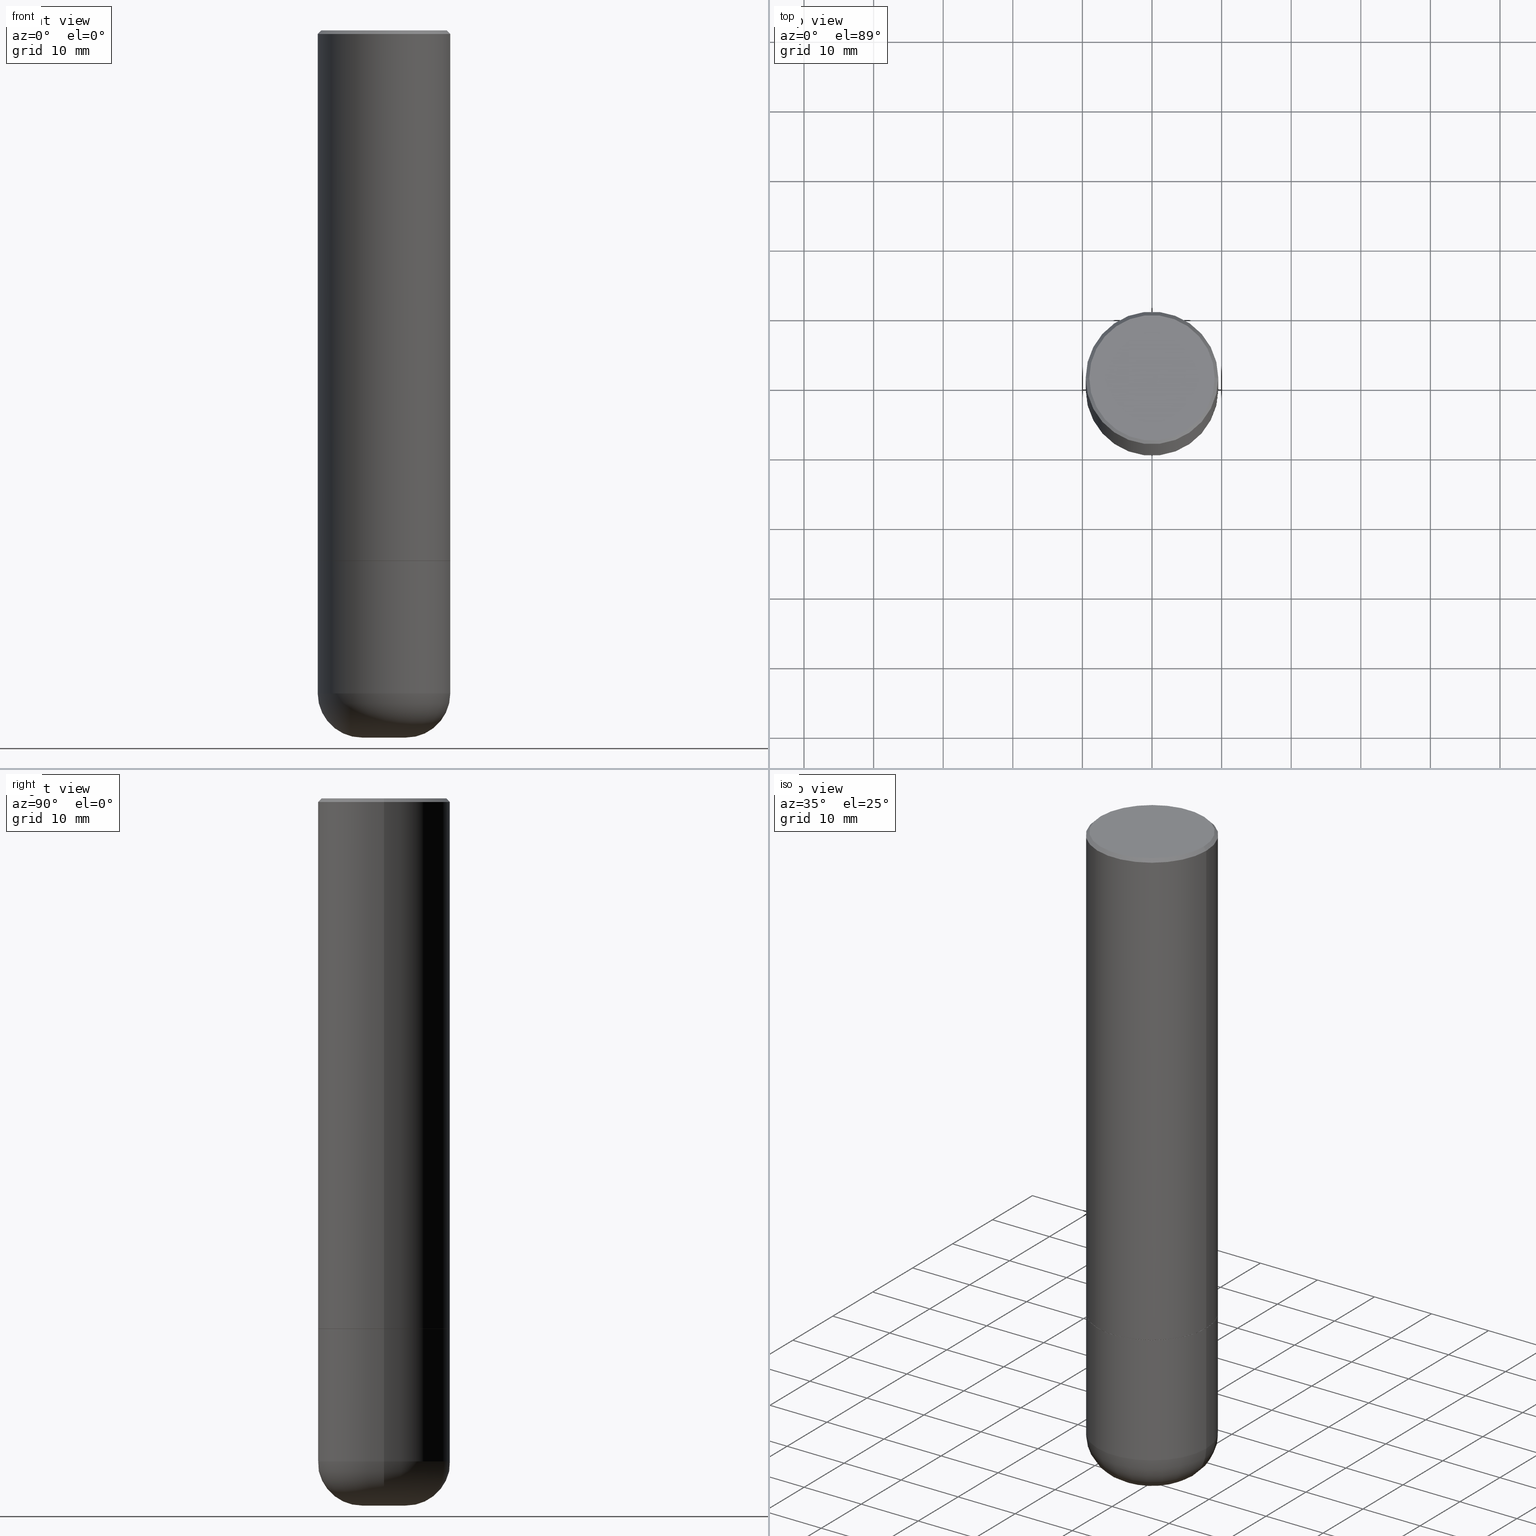
[diagram: canonical four-view strip — front | top / right | iso, engineering-drawing reading convention]
A machine part, canonical four-view strip (front | top / right | iso — engineering-drawing reading convention). The complete STEP part file that produces these views, byte-faithful:
ISO-10303-21;
HEADER;
FILE_DESCRIPTION (( 'STEP AP203' ),
    '1' );
FILE_NAME ('35722.STEP',
    '2022-11-02T20:52:24',
    ( '' ),
    ( '' ),
    'SwSTEP 2.0',
    'SolidWorks 2022',
    '' );
FILE_SCHEMA (( 'CONFIG_CONTROL_DESIGN' ));
ENDSEC;

DATA;
#1 = DIRECTION ( 'NONE',  ( -2.445468806185136597E-29, 3.491481338843145583E-15, 1.000000000000000000 ) ) ;
#2 = DIRECTION ( 'NONE',  ( -2.438088387897960049E-29, 3.491481338843145188E-15, 1.000000000000000000 ) ) ;
#3 = VECTOR ( 'NONE', #160, 39.37007874015748143 ) ;
#4 = ADVANCED_FACE ( 'NONE', ( #309 ), #453, .T. ) ;
#5 = VECTOR ( 'NONE', #356, 39.37007874015748143 ) ;
#6 = CARTESIAN_POINT ( 'NONE',  ( -0.3749999999999995004, -9.119230877609102536E-15, -2.999999999999999556 ) ) ;
#7 = APPLICATION_PROTOCOL_DEFINITION ( 'international standard', 'config_control_design', 1994, #52 ) ;
#8 = EDGE_LOOP ( 'NONE', ( #435, #21, #101, #158 ) ) ;
#9 = DIRECTION ( 'NONE',  ( -1.000000000000000000, 6.982962677686265922E-15, -4.876176775795935793E-29 ) ) ;
#10 = CALENDAR_DATE ( 2022, 2, 11 ) ;
#11 = DIRECTION ( 'NONE',  ( -2.445468806185136597E-29, 3.491481338843145583E-15, 1.000000000000000000 ) ) ;
#12 = CIRCLE ( 'NONE', #297, 0.3549999999999989275 ) ;
#13 = DIRECTION ( 'NONE',  ( 7.105427357601001859E-15, 1.000000000000000000, -3.491481338843145583E-15 ) ) ;
#14 = AXIS2_PLACEMENT_3D ( 'NONE', #204, #175, #325 ) ;
#15 = COORDINATED_UNIVERSAL_TIME_OFFSET ( 5, 0, .BEHIND. ) ;
#16 = LINE ( 'NONE', #38, #180 ) ;
#17 = CARTESIAN_POINT ( 'NONE',  ( 4.890937612370327459E-31, -6.982962677686369262E-17, -0.02000000000000022246 ) ) ;
#18 = FACE_OUTER_BOUND ( 'NONE', #253, .T. ) ;
#19 = CIRCLE ( 'NONE', #324, 0.3749999999999995004 ) ;
#20 = ORIENTED_EDGE ( 'NONE', *, *, #93, .T. ) ;
#21 = ORIENTED_EDGE ( 'NONE', *, *, #362, .T. ) ;
#22 = VERTEX_POINT ( 'NONE', #6 ) ;
#23 = AXIS2_PLACEMENT_3D ( 'NONE', #284, #13, #233 ) ;
#24 = LOCAL_TIME ( 16, 52, 24.00000000000000000, #353 ) ;
#25 = DIRECTION ( 'NONE',  ( -2.445468806185136597E-29, 3.491481338843145583E-15, 1.000000000000000000 ) ) ;
#26 = ORIENTED_EDGE ( 'NONE', *, *, #149, .F. ) ;
#27 = DIRECTION ( 'NONE',  ( -1.000000000000000000, 6.982962677686266711E-15, 0.000000000000000000 ) ) ;
#28 = CARTESIAN_POINT ( 'NONE',  ( 0.000000000000000000, 0.000000000000000000, 0.000000000000000000 ) ) ;
#29 = TOROIDAL_SURFACE ( 'NONE', #361, 0.1250000000000002498, 0.2499999999999998890 ) ;
#30 = DIRECTION ( 'NONE',  ( -0.9993908270190957621, 6.856857904024565937E-15, -0.03489949670249840874 ) ) ;
#31 = APPLICATION_CONTEXT ( 'configuration controlled 3d designs of mechanical parts and assemblies' ) ;
#32 = EDGE_CURVE ( 'NONE', #407, #88, #280, .T. ) ;
#33 = DIRECTION ( 'NONE',  ( 2.445468806185136597E-29, -3.491481338843145583E-15, -1.000000000000000000 ) ) ;
#34 = ADVANCED_FACE ( 'NONE', ( #263 ), #121, .F. ) ;
#35 = LINE ( 'NONE', #490, #360 ) ;
#36 = COORDINATED_UNIVERSAL_TIME_OFFSET ( 5, 0, .BEHIND. ) ;
#37 = EDGE_CURVE ( 'NONE', #443, #399, #380, .T. ) ;
#38 = CARTESIAN_POINT ( 'NONE',  ( -0.1228183661254081405, -1.310828928858444983E-14, -4.000000000000000000 ) ) ;
#39 = AXIS2_PLACEMENT_3D ( 'NONE', #485, #145, #340 ) ;
#40 = CARTESIAN_POINT ( 'NONE',  ( 0.3749999999999997780, -2.618611004132348044E-15, 1.828566290923474801E-29 ) ) ;
#41 = DATE_TIME_ROLE ( 'classification_date' ) ;
#42 = CARTESIAN_POINT ( 'NONE',  ( 0.3749999999999995004, -1.309305502066178164E-14, -2.999999999999999556 ) ) ;
#43 = APPROVAL ( #460, 'UNSPECIFIED' ) ;
#44 = CARTESIAN_POINT ( 'NONE',  ( 0.3749999999999992784, -2.618611004132345283E-15, 1.828566290923472279E-29 ) ) ;
#45 = CARTESIAN_POINT ( 'NONE',  ( -0.3749999999999992784, 2.664535259100370569E-15, -1.844600658845586235E-29 ) ) ;
#46 = PERSON_AND_ORGANIZATION_ROLE ( 'creator' ) ;
#47 = CARTESIAN_POINT ( 'NONE',  ( 9.781021626775434250E-29, -1.396470664370530441E-14, -3.999650947105539256 ) ) ;
#48 = AXIS2_PLACEMENT_3D ( 'NONE', #296, #447, #113 ) ;
#49 = CARTESIAN_POINT ( 'NONE',  ( 7.336406418555408669E-29, -1.047444401652943478E-14, -2.999999999999999556 ) ) ;
#50 = CC_DESIGN_APPROVAL ( #393, ( #248 ) ) ;
#51 = EDGE_CURVE ( 'NONE', #139, #71, #431, .T. ) ;
#52 = APPLICATION_CONTEXT ( 'configuration controlled 3d designs of mechanical parts and assemblies' ) ;
#53 = ORIENTED_EDGE ( 'NONE', *, *, #66, .F. ) ;
#54 = FACE_OUTER_BOUND ( 'NONE', #429, .T. ) ;
#55 =( CONVERSION_BASED_UNIT ( 'INCH', #388 ) LENGTH_UNIT ( ) NAMED_UNIT ( #251 ) );
#56 = DIRECTION ( 'NONE',  ( 1.000000000000000000, -6.982962677686265922E-15, 4.876176775795935793E-29 ) ) ;
#57 = ADVANCED_FACE ( 'NONE', ( #197 ), #157, .F. ) ;
#58 = CIRCLE ( 'NONE', #67, 0.1228183661254081405 ) ;
#59 = LOCAL_TIME ( 16, 52, 24.00000000000000000, #36 ) ;
#60 = CIRCLE ( 'NONE', #14, 0.2499999999999998612 ) ;
#61 = AXIS2_PLACEMENT_3D ( 'NONE', #28, #268, #411 ) ;
#62 = PRODUCT ( '35722', '35722', '', ( #444 ) ) ;
#63 = ORIENTED_EDGE ( 'NONE', *, *, #303, .F. ) ;
#64 = APPLICATION_PROTOCOL_DEFINITION ( 'international standard', 'config_control_design', 1994, #31 ) ;
#65 = EDGE_LOOP ( 'NONE', ( #402, #109, #390, #478 ) ) ;
#66 = EDGE_CURVE ( 'NONE', #71, #443, #439, .T. ) ;
#67 = AXIS2_PLACEMENT_3D ( 'NONE', #72, #406, #455 ) ;
#68 = PRODUCT_DEFINITION_SHAPE ( 'NONE', 'NONE',  #482 ) ;
#69 = PERSON_AND_ORGANIZATION_ROLE ( 'design_owner' ) ;
#70 = DIRECTION ( 'NONE',  ( -0.7071067811865469066, 2.468850131082251144E-15, -0.7071067811865479058 ) ) ;
#71 = VERTEX_POINT ( 'NONE', #90 ) ;
#72 = CARTESIAN_POINT ( 'NONE',  ( 9.781875224740546387E-29, -1.396592535537258233E-14, -4.000000000000000000 ) ) ;
#73 = ORIENTED_EDGE ( 'NONE', *, *, #442, .T. ) ;
#74 = AXIS2_PLACEMENT_3D ( 'NONE', #469, #96, #200 ) ;
#75 = CIRCLE ( 'NONE', #422, 0.3749999999999995004 ) ;
#76 = DIRECTION ( 'NONE',  ( -2.445468806185136597E-29, 3.491481338843145583E-15, 1.000000000000000000 ) ) ;
#77 = ORIENTED_EDGE ( 'NONE', *, *, #94, .T. ) ;
#78 = DIRECTION ( 'NONE',  ( -2.445468806185136597E-29, 3.491481338843145583E-15, 1.000000000000000000 ) ) ;
#79 = ORIENTED_EDGE ( 'NONE', *, *, #398, .F. ) ;
#80 = VERTEX_POINT ( 'NONE', #238 ) ;
#81 = DIRECTION ( 'NONE',  ( 0.7071067811868130271, -2.468850131085038979E-15, 0.7071067811862817853 ) ) ;
#82 = DIRECTION ( 'NONE',  ( 2.438088387897960049E-29, -3.491481338843145188E-15, -1.000000000000000000 ) ) ;
#83 = UNCERTAINTY_MEASURE_WITH_UNIT (LENGTH_MEASURE( 1.000000000000000082E-05 ), #55, 'distance_accuracy_value', 'NONE');
#84 = CALENDAR_DATE ( 2022, 2, 11 ) ;
#85 = FACE_OUTER_BOUND ( 'NONE', #214, .T. ) ;
#86 = VECTOR ( 'NONE', #30, 39.37007874015748854 ) ;
#87 = PERSON_AND_ORGANIZATION ( #476, #338 ) ;
#88 = VERTEX_POINT ( 'NONE', #205 ) ;
#89 = LINE ( 'NONE', #44, #5 ) ;
#90 = CARTESIAN_POINT ( 'NONE',  ( -0.3750000000000000555, -9.119230877609100958E-15, -3.750009519233957089 ) ) ;
#91 = PERSON_AND_ORGANIZATION ( #476, #338 ) ;
#92 = DIRECTION ( 'NONE',  ( -2.445468806185136597E-29, 3.491481338843145583E-15, 1.000000000000000000 ) ) ;
#93 = EDGE_CURVE ( 'NONE', #259, #414, #474, .T. ) ;
#94 = EDGE_CURVE ( 'NONE', #271, #407, #472, .T. ) ;
#95 = EDGE_LOOP ( 'NONE', ( #266, #394, #147, #285 ) ) ;
#96 = DIRECTION ( 'NONE',  ( 2.445468806185136597E-29, -3.491481338843145583E-15, -1.000000000000000000 ) ) ;
#97 = CONICAL_SURFACE ( 'NONE', #371, 0.3739999999999994995, 0.7853981633978239785 ) ;
#98 = AXIS2_PLACEMENT_3D ( 'NONE', #419, #92, #132 ) ;
#99 = ADVANCED_FACE ( 'NONE', ( #122 ), #391, .F. ) ;
#100 = DIRECTION ( 'NONE',  ( -1.000000000000000000, 6.982962677686264344E-15, 0.000000000000000000 ) ) ;
#101 = ORIENTED_EDGE ( 'NONE', *, *, #322, .T. ) ;
#102 = CC_DESIGN_DATE_AND_TIME_ASSIGNMENT ( #230, #269, ( #482 ) ) ;
#103 = VECTOR ( 'NONE', #228, 39.37007874015748854 ) ;
#104 = EDGE_LOOP ( 'NONE', ( #347, #302, #143, #246 ) ) ;
#105 = EDGE_CURVE ( 'NONE', #443, #71, #206, .T. ) ;
#106 = EDGE_LOOP ( 'NONE', ( #181, #108 ) ) ;
#107 = ADVANCED_FACE ( 'NONE', ( #428 ), #97, .T. ) ;
#108 = ORIENTED_EDGE ( 'NONE', *, *, #264, .T. ) ;
#109 = ORIENTED_EDGE ( 'NONE', *, *, #167, .T. ) ;
#110 = CIRCLE ( 'NONE', #480, 0.3739999999999994995 ) ;
#111 = DIRECTION ( 'NONE',  ( -2.445468806185136597E-29, 3.491481338843145583E-15, 1.000000000000000000 ) ) ;
#112 = EDGE_CURVE ( 'NONE', #329, #292, #381, .T. ) ;
#113 = DIRECTION ( 'NONE',  ( 1.000000000000000000, -6.982962677686266711E-15, 0.000000000000000000 ) ) ;
#114 = CYLINDRICAL_SURFACE ( 'NONE', #396, 0.3749999999999997780 ) ;
#115 = EDGE_LOOP ( 'NONE', ( #327, #223, #73, #385 ) ) ;
#116 = AXIS2_PLACEMENT_3D ( 'NONE', #344, #2, #148 ) ;
#117 = CC_DESIGN_SECURITY_CLASSIFICATION ( #248, ( #256 ) ) ;
#118 = CARTESIAN_POINT ( 'NONE',  ( 0.000000000000000000, 0.000000000000000000, 0.000000000000000000 ) ) ;
#119 = APPROVAL_ROLE ( '' ) ;
#120 = CARTESIAN_POINT ( 'NONE',  ( 7.333960949749226429E-29, -1.047095253519059492E-14, -2.999000000000000554 ) ) ;
#121 = PLANE ( 'NONE',  #134 ) ;
#122 = FACE_OUTER_BOUND ( 'NONE', #332, .T. ) ;
#123 = PERSON_AND_ORGANIZATION_ROLE ( 'creator' ) ;
#124 = ADVANCED_FACE ( 'NONE', ( #166 ), #231, .T. ) ;
#125 = EDGE_LOOP ( 'NONE', ( #210, #20, #250 ) ) ;
#126 = CIRCLE ( 'NONE', #48, 0.3749999999999991673 ) ;
#127 = CARTESIAN_POINT ( 'NONE',  ( 0.3739999999999994995, -1.308607205798409720E-14, -2.999999999999999556 ) ) ;
#128 = DIRECTION ( 'NONE',  ( 2.445468806185136597E-29, -3.491481338843145583E-15, -1.000000000000000000 ) ) ;
#129 = SHAPE_DEFINITION_REPRESENTATION ( #68, #382 ) ;
#130 = EDGE_CURVE ( 'NONE', #271, #80, #409, .T. ) ;
#131 = DIRECTION ( 'NONE',  ( 1.000000000000000000, -6.982962677686265922E-15, 4.883557194083113462E-29 ) ) ;
#132 = DIRECTION ( 'NONE',  ( 1.000000000000000000, -6.982962677686265922E-15, 4.883557194083113462E-29 ) ) ;
#133 = LINE ( 'NONE', #127, #185 ) ;
#134 = AXIS2_PLACEMENT_3D ( 'NONE', #377, #82, #229 ) ;
#135 = DIRECTION ( 'NONE',  ( 2.438088387897960049E-29, -3.491481338843145188E-15, -1.000000000000000000 ) ) ;
#136 = CIRCLE ( 'NONE', #481, 0.1228183661254081405 ) ;
#137 = EDGE_CURVE ( 'NONE', #311, #345, #287, .T. ) ;
#138 = CYLINDRICAL_SURFACE ( 'NONE', #331, 0.3749999999999997780 ) ;
#139 = VERTEX_POINT ( 'NONE', #177 ) ;
#140 = ORIENTED_EDGE ( 'NONE', *, *, #417, .F. ) ;
#141 = ORIENTED_EDGE ( 'NONE', *, *, #146, .T. ) ;
#142 = ADVANCED_FACE ( 'NONE', ( #182 ), #456, .T. ) ;
#143 = ORIENTED_EDGE ( 'NONE', *, *, #146, .F. ) ;
#144 = DIRECTION ( 'NONE',  ( 1.000000000000000000, 0.000000000000000000, 0.000000000000000000 ) ) ;
#145 = DIRECTION ( 'NONE',  ( -2.445468806185136597E-29, 3.491481338843145583E-15, 1.000000000000000000 ) ) ;
#146 = EDGE_CURVE ( 'NONE', #80, #271, #19, .T. ) ;
#147 = ORIENTED_EDGE ( 'NONE', *, *, #417, .T. ) ;
#148 = DIRECTION ( 'NONE',  ( 1.000000000000000000, -6.982962677686265922E-15, 4.876176775795935793E-29 ) ) ;
#149 = EDGE_CURVE ( 'NONE', #71, #22, #215, .T. ) ;
#150 = ORIENTED_EDGE ( 'NONE', *, *, #159, .T. ) ;
#151 = TOROIDAL_SURFACE ( 'NONE', #98, 0.1250000000000002498, 0.2499999999999998890 ) ;
#152 = CARTESIAN_POINT ( 'NONE',  ( 0.000000000000000000, 0.000000000000000000, 0.000000000000000000 ) ) ;
#153 = ORIENTED_EDGE ( 'NONE', *, *, #264, .F. ) ;
#154 = EDGE_CURVE ( 'NONE', #345, #271, #257, .T. ) ;
#155 = CARTESIAN_POINT ( 'NONE',  ( -0.08282086612540803805, -1.338637162661792959E-14, -3.999650947105539256 ) ) ;
#156 = DIRECTION ( 'NONE',  ( -0.7071067811868130271, 7.493145998871311837E-15, 0.7071067811862817853 ) ) ;
#157 = CONICAL_SURFACE ( 'NONE', #176, 0.08282086612540803805, 1.535889741755012583 ) ;
#158 = ORIENTED_EDGE ( 'NONE', *, *, #222, .F. ) ;
#159 = EDGE_CURVE ( 'NONE', #290, #139, #58, .T. ) ;
#160 = DIRECTION ( 'NONE',  ( -2.445468806185136877E-29, 3.491481338843145188E-15, 1.000000000000000000 ) ) ;
#161 = DATE_AND_TIME ( #10, #397 ) ;
#162 = ORIENTED_EDGE ( 'NONE', *, *, #37, .F. ) ;
#163 = CARTESIAN_POINT ( 'NONE',  ( 0.3750000000000000555, -1.571169926102186855E-14, -3.750009519233957089 ) ) ;
#164 = PERSON_AND_ORGANIZATION ( #476, #338 ) ;
#165 = CARTESIAN_POINT ( 'NONE',  ( 0.3749999999999991673, -2.642516375941182112E-15, -0.02000000000000022246 ) ) ;
#166 = FACE_OUTER_BOUND ( 'NONE', #400, .T. ) ;
#167 = EDGE_CURVE ( 'NONE', #345, #311, #110, .T. ) ;
#168 = COORDINATED_UNIVERSAL_TIME_OFFSET ( 5, 0, .BEHIND. ) ;
#169 = DIRECTION ( 'NONE',  ( 0.9993908270190957621, -6.978169709227532810E-15, -0.03489949670249840874 ) ) ;
#170 = PERSON_AND_ORGANIZATION_ROLE ( 'design_supplier' ) ;
#171 = CARTESIAN_POINT ( 'NONE',  ( -0.3739999999999994995, -7.811715730438443207E-15, -2.999999999999999556 ) ) ;
#172 = CARTESIAN_POINT ( 'NONE',  ( 7.333960949749226429E-29, -1.047095253519059492E-14, -2.999000000000000554 ) ) ;
#173 = FACE_OUTER_BOUND ( 'NONE', #95, .T. ) ;
#174 = DIRECTION ( 'NONE',  ( -2.445468806185136597E-29, 3.491481338843145583E-15, 1.000000000000000000 ) ) ;
#175 = DIRECTION ( 'NONE',  ( -6.982962677686266711E-15, -1.000000000000000000, 3.491481338843145583E-15 ) ) ;
#176 = AXIS2_PLACEMENT_3D ( 'NONE', #203, #128, #433 ) ;
#177 = CARTESIAN_POINT ( 'NONE',  ( -0.1228183661254081405, -1.176090068723919562E-14, -4.000000000000000000 ) ) ;
#178 = ORIENTED_EDGE ( 'NONE', *, *, #364, .T. ) ;
#179 = ORIENTED_EDGE ( 'NONE', *, *, #137, .F. ) ;
#180 = VECTOR ( 'NONE', #192, 39.37007874015748854 ) ;
#181 = ORIENTED_EDGE ( 'NONE', *, *, #398, .T. ) ;
#182 = FACE_OUTER_BOUND ( 'NONE', #104, .T. ) ;
#183 = CARTESIAN_POINT ( 'NONE',  ( -0.3739999999999994995, -7.817014184786664031E-15, -2.999999999999999556 ) ) ;
#184 = CARTESIAN_POINT ( 'NONE',  ( -0.3749999999999997780, 2.664535259100374119E-15, -1.844600658845588477E-29 ) ) ;
#185 = VECTOR ( 'NONE', #81, 39.37007874015748854 ) ;
#186 = DIRECTION ( 'NONE',  ( -2.445468806185136597E-29, 3.491481338843145583E-15, 1.000000000000000000 ) ) ;
#187 = DIRECTION ( 'NONE',  ( -2.445468806185136597E-29, 3.491481338843145583E-15, 1.000000000000000000 ) ) ;
#188 = DATE_AND_TIME ( #314, #432 ) ;
#189 = PLANE ( 'NONE',  #116 ) ;
#190 = CALENDAR_DATE ( 2022, 2, 11 ) ;
#191 = AXIS2_PLACEMENT_3D ( 'NONE', #172, #320, #477 ) ;
#192 = DIRECTION ( 'NONE',  ( -0.9999619230641714207, 6.952228252019186602E-15, -0.008726535498369011531 ) ) ;
#193 = APPROVAL_STATUS ( 'not_yet_approved' ) ;
#194 = ORIENTED_EDGE ( 'NONE', *, *, #105, .F. ) ;
#195 = EDGE_CURVE ( 'NONE', #292, #329, #12, .T. ) ;
#196 = DIRECTION ( 'NONE',  ( 1.000000000000000000, -6.982962677686266711E-15, 4.876231632512002757E-29 ) ) ;
#197 = FACE_OUTER_BOUND ( 'NONE', #459, .T. ) ;
#198 = CC_DESIGN_PERSON_AND_ORGANIZATION_ASSIGNMENT ( #164, #123, ( #256 ) ) ;
#199 = VECTOR ( 'NONE', #156, 39.37007874015748854 ) ;
#200 = DIRECTION ( 'NONE',  ( -1.000000000000000000, 6.982962677686262766E-15, 0.000000000000000000 ) ) ;
#201 = CARTESIAN_POINT ( 'NONE',  ( -1.043851414335219820E-46, 1.490343170380447200E-32, 4.268512490100411279E-18 ) ) ;
#202 = CARTESIAN_POINT ( 'NONE',  ( 9.170531302183963183E-29, -1.309308825688951696E-14, -3.750009519233957089 ) ) ;
#203 = CARTESIAN_POINT ( 'NONE',  ( 9.781021626775434250E-29, -1.396470664370530441E-14, -3.999650947105539256 ) ) ;
#204 = CARTESIAN_POINT ( 'NONE',  ( 0.1250000000000002498, -1.396595859160030187E-14, -3.750009519233957089 ) ) ;
#205 = CARTESIAN_POINT ( 'NONE',  ( 0.3749999999999991673, -2.642516375941182112E-15, -0.02000000000000022246 ) ) ;
#206 = CIRCLE ( 'NONE', #220, 0.3750000000000000555 ) ;
#207 = EDGE_CURVE ( 'NONE', #259, #483, #408, .T. ) ;
#208 = CONICAL_SURFACE ( 'NONE', #488, 0.1228183661254081405, 1.562069680534929894 ) ;
#209 = CLOSED_SHELL ( 'NONE', ( #454, #366, #463, #326, #57, #34, #282, #436, #451 ) ) ;
#210 = ORIENTED_EDGE ( 'NONE', *, *, #207, .F. ) ;
#211 = ORIENTED_EDGE ( 'NONE', *, *, #491, .F. ) ;
#212 = CARTESIAN_POINT ( 'NONE',  ( 7.336406418555408669E-29, -1.047444401652943478E-14, -2.999999999999999556 ) ) ;
#213 = CIRCLE ( 'NONE', #346, 0.3749999999999995004 ) ;
#214 = EDGE_LOOP ( 'NONE', ( #178, #219, #471, #140 ) ) ;
#215 = LINE ( 'NONE', #184, #3 ) ;
#216 = CARTESIAN_POINT ( 'NONE',  ( 0.000000000000000000, 0.000000000000000000, 0.000000000000000000 ) ) ;
#217 = CARTESIAN_POINT ( 'NONE',  ( -0.3749999999999993894, -2.605855821883354597E-15, -2.999000000000000554 ) ) ;
#218 = CARTESIAN_POINT ( 'NONE',  ( -1.043851414335219820E-46, 1.490343170380447200E-32, 4.268512490100411279E-18 ) ) ;
#219 = ORIENTED_EDGE ( 'NONE', *, *, #278, .T. ) ;
#220 = AXIS2_PLACEMENT_3D ( 'NONE', #289, #273, #283 ) ;
#221 = CARTESIAN_POINT ( 'NONE',  ( 4.890937612370327459E-31, -6.982962677686369262E-17, -0.02000000000000022246 ) ) ;
#222 = EDGE_CURVE ( 'NONE', #292, #407, #35, .T. ) ;
#223 = ORIENTED_EDGE ( 'NONE', *, *, #130, .T. ) ;
#224 = APPROVAL_ROLE ( '' ) ;
#225 = CARTESIAN_POINT ( 'NONE',  ( -0.3549999999999989275, 2.513866563967048758E-15, 4.268512490082953109E-18 ) ) ;
#226 = DATE_AND_TIME ( #190, #467 ) ;
#227 = ADVANCED_FACE ( 'NONE', ( #374 ), #492, .T. ) ;
#228 = DIRECTION ( 'NONE',  ( 0.7071067811865469066, -7.319954787623252890E-15, -0.7071067811865479058 ) ) ;
#229 = DIRECTION ( 'NONE',  ( -1.000000000000000000, 6.982962677686265922E-15, -4.876176775795935793E-29 ) ) ;
#230 = DATE_AND_TIME ( #84, #24 ) ;
#231 = CONICAL_SURFACE ( 'NONE', #392, 0.3749999999999991673, 0.7853981633974476129 ) ;
#232 = CC_DESIGN_APPROVAL ( #43, ( #256 ) ) ;
#233 = DIRECTION ( 'NONE',  ( -1.000000000000000000, 7.105427357601000281E-15, 0.000000000000000000 ) ) ;
#234 = APPROVAL_ROLE ( '' ) ;
#235 = EDGE_LOOP ( 'NONE', ( #26, #363, #304, #153 ) ) ;
#236 = DIRECTION ( 'NONE',  ( -1.000000000000000000, 6.982962677686264344E-15, 0.000000000000000000 ) ) ;
#237 = ORIENTED_EDGE ( 'NONE', *, *, #222, .T. ) ;
#238 = CARTESIAN_POINT ( 'NONE',  ( 0.3749999999999995004, -1.308956353932294179E-14, -2.999000000000000554 ) ) ;
#239 = ORIENTED_EDGE ( 'NONE', *, *, #195, .T. ) ;
#240 = CIRCLE ( 'NONE', #247, 0.08282086612540803805 ) ;
#241 = DIRECTION ( 'NONE',  ( 1.000000000000000000, -6.982962677686262766E-15, 0.000000000000000000 ) ) ;
#242 = CARTESIAN_POINT ( 'NONE',  ( 0.08282086612540803805, -1.453289902993236871E-14, -3.999650947105539256 ) ) ;
#243 = CARTESIAN_POINT ( 'NONE',  ( 0.000000000000000000, 0.000000000000000000, 0.000000000000000000 ) ) ;
#244 = DIRECTION ( 'NONE',  ( 1.000000000000000000, -6.982962677686266711E-15, 0.000000000000000000 ) ) ;
#245 =( NAMED_UNIT ( * ) PLANE_ANGLE_UNIT ( ) SI_UNIT ( $, .RADIAN. ) );
#246 = ORIENTED_EDGE ( 'NONE', *, *, #354, .F. ) ;
#247 = AXIS2_PLACEMENT_3D ( 'NONE', #47, #288, #241 ) ;
#248 = SECURITY_CLASSIFICATION ( '', '', #384 ) ;
#249 = EDGE_LOOP ( 'NONE', ( #405, #438, #291, #53 ) ) ;
#250 = ORIENTED_EDGE ( 'NONE', *, *, #364, .F. ) ;
#251 = DIMENSIONAL_EXPONENTS ( 1.000000000000000000, 0.000000000000000000, 0.000000000000000000, 0.000000000000000000, 0.000000000000000000, 0.000000000000000000, 0.000000000000000000 ) ;
#252 = DESIGN_CONTEXT ( 'detailed design', #52, 'design' ) ;
#253 = EDGE_LOOP ( 'NONE', ( #418, #461, #79, #162 ) ) ;
#254 = MANIFOLD_SOLID_BREP ( 'Body-Move/Copy2[2]', #423 ) ;
#255 = VECTOR ( 'NONE', #299, 39.37007874015748143 ) ;
#256 = PRODUCT_DEFINITION_FORMATION_WITH_SPECIFIED_SOURCE ( 'ANY', '', #62, .NOT_KNOWN. ) ;
#257 = LINE ( 'NONE', #183, #199 ) ;
#258 = CARTESIAN_POINT ( 'NONE',  ( 0.1228183661254081405, -1.482356142216071483E-14, -4.000000000000000000 ) ) ;
#259 = VERTEX_POINT ( 'NONE', #369 ) ;
#260 = AXIS2_PLACEMENT_3D ( 'NONE', #118, #111, #262 ) ;
#261 = APPROVAL_DATE_TIME ( #188, #393 ) ;
#262 = DIRECTION ( 'NONE',  ( 1.000000000000000000, -6.982962677686267499E-15, 4.876176775795935232E-29 ) ) ;
#263 = FACE_OUTER_BOUND ( 'NONE', #106, .T. ) ;
#264 = EDGE_CURVE ( 'NONE', #22, #399, #213, .T. ) ;
#265 = PERSON_AND_ORGANIZATION ( #476, #338 ) ;
#266 = ORIENTED_EDGE ( 'NONE', *, *, #278, .F. ) ;
#267 = DIRECTION ( 'NONE',  ( 1.000000000000000000, -6.982962677686265922E-15, 4.876176775795935793E-29 ) ) ;
#268 = DIRECTION ( 'NONE',  ( -2.445468806185136597E-29, 3.491481338843145583E-15, 1.000000000000000000 ) ) ;
#269 = DATE_TIME_ROLE ( 'creation_date' ) ;
#270 = MANIFOLD_SOLID_BREP ( 'Body-Move/Copy2[1]', #209 ) ;
#271 = VERTEX_POINT ( 'NONE', #217 ) ;
#272 = DIRECTION ( 'NONE',  ( 2.445468806185136597E-29, -3.491481338843145583E-15, -1.000000000000000000 ) ) ;
#273 = DIRECTION ( 'NONE',  ( -2.445468806185136597E-29, 3.491481338843145583E-15, 1.000000000000000000 ) ) ;
#274 = PERSON_AND_ORGANIZATION ( #476, #338 ) ;
#275 = CONICAL_SURFACE ( 'NONE', #330, 0.3749999999999991673, 0.7853981633974476129 ) ;
#276 = CONICAL_SURFACE ( 'NONE', #337, 0.1228183661254081405, 1.562069680534929894 ) ;
#277 = ORIENTED_EDGE ( 'NONE', *, *, #93, .F. ) ;
#278 = EDGE_CURVE ( 'NONE', #414, #290, #452, .T. ) ;
#279 = DIRECTION ( 'NONE',  ( 1.000000000000000000, -6.982962677686264344E-15, 0.000000000000000000 ) ) ;
#280 = CIRCLE ( 'NONE', #339, 0.3749999999999991673 ) ;
#281 = CARTESIAN_POINT ( 'NONE',  ( 7.336406418555408669E-29, -1.047444401652943478E-14, -2.999999999999999556 ) ) ;
#282 = ADVANCED_FACE ( 'NONE', ( #489 ), #114, .T. ) ;
#283 = DIRECTION ( 'NONE',  ( 1.000000000000000000, -6.982962677686266711E-15, 0.000000000000000000 ) ) ;
#284 = CARTESIAN_POINT ( 'NONE',  ( -0.1250000000000002498, -1.220490983718939015E-14, -3.750009519233957089 ) ) ;
#285 = ORIENTED_EDGE ( 'NONE', *, *, #159, .F. ) ;
#286 = DIRECTION ( 'NONE',  ( -2.445468806185136597E-29, 3.491481338843145583E-15, 1.000000000000000000 ) ) ;
#287 = CIRCLE ( 'NONE', #475, 0.3739999999999994995 ) ;
#288 = DIRECTION ( 'NONE',  ( -2.445468806185136597E-29, 3.491481338843145583E-15, 1.000000000000000000 ) ) ;
#289 = CARTESIAN_POINT ( 'NONE',  ( 9.170531302183963183E-29, -1.309308825688951696E-14, -3.750009519233957089 ) ) ;
#290 = VERTEX_POINT ( 'NONE', #258 ) ;
#291 = ORIENTED_EDGE ( 'NONE', *, *, #491, .T. ) ;
#292 = VERTEX_POINT ( 'NONE', #225 ) ;
#293 = EDGE_LOOP ( 'NONE', ( #179, #464 ) ) ;
#294 = ORIENTED_EDGE ( 'NONE', *, *, #195, .F. ) ;
#295 = CC_DESIGN_PERSON_AND_ORGANIZATION_ASSIGNMENT ( #265, #170, ( #256 ) ) ;
#296 = CARTESIAN_POINT ( 'NONE',  ( 4.890937612370327459E-31, -6.982962677686369262E-17, -0.02000000000000022246 ) ) ;
#297 = AXIS2_PLACEMENT_3D ( 'NONE', #218, #78, #308 ) ;
#298 =( GEOMETRIC_REPRESENTATION_CONTEXT ( 3 ) GLOBAL_UNCERTAINTY_ASSIGNED_CONTEXT ( ( #83 ) ) GLOBAL_UNIT_ASSIGNED_CONTEXT ( ( #55, #245, #373 ) ) REPRESENTATION_CONTEXT ( 'NONE', 'WORKASPACE' ) );
#299 = DIRECTION ( 'NONE',  ( -2.445468806185136877E-29, 3.491481338843145188E-15, 1.000000000000000000 ) ) ;
#300 = ADVANCED_FACE ( 'NONE', ( #415 ), #275, .T. ) ;
#301 = DIRECTION ( 'NONE',  ( -2.445468806185136597E-29, 3.491481338843145583E-15, 1.000000000000000000 ) ) ;
#302 = ORIENTED_EDGE ( 'NONE', *, *, #154, .T. ) ;
#303 = EDGE_CURVE ( 'NONE', #414, #483, #487, .T. ) ;
#304 = ORIENTED_EDGE ( 'NONE', *, *, #37, .T. ) ;
#305 = CARTESIAN_POINT ( 'NONE',  ( 7.336406418555408669E-29, -1.047444401652943478E-14, -2.999999999999999556 ) ) ;
#306 = DIRECTION ( 'NONE',  ( 1.000000000000000000, -6.982962677686266711E-15, 0.000000000000000000 ) ) ;
#307 = VECTOR ( 'NONE', #462, 39.37007874015748143 ) ;
#308 = DIRECTION ( 'NONE',  ( 1.000000000000000000, -6.982962677686266711E-15, 4.876231632512002757E-29 ) ) ;
#309 = FACE_OUTER_BOUND ( 'NONE', #341, .T. ) ;
#310 = COORDINATED_UNIVERSAL_TIME_OFFSET ( 5, 0, .BEHIND. ) ;
#311 = VERTEX_POINT ( 'NONE', #343 ) ;
#312 = DIRECTION ( 'NONE',  ( -2.445468806185136597E-29, 3.491481338843145583E-15, 1.000000000000000000 ) ) ;
#313 = DIRECTION ( 'NONE',  ( -1.000000000000000000, 6.982962677686266711E-15, 0.000000000000000000 ) ) ;
#314 = CALENDAR_DATE ( 2022, 2, 11 ) ;
#315 = VECTOR ( 'NONE', #169, 39.37007874015748854 ) ;
#316 = APPROVAL_PERSON_ORGANIZATION ( #274, #393, #234 ) ;
#317 = PERSON_AND_ORGANIZATION_ROLE ( 'classification_officer' ) ;
#318 = ADVANCED_FACE ( 'NONE', ( #486 ), #189, .F. ) ;
#319 = CC_DESIGN_PERSON_AND_ORGANIZATION_ASSIGNMENT ( #403, #69, ( #62 ) ) ;
#320 = DIRECTION ( 'NONE',  ( -2.445468806185136597E-29, 3.491481338843145583E-15, 1.000000000000000000 ) ) ;
#321 = FACE_OUTER_BOUND ( 'NONE', #125, .T. ) ;
#322 = EDGE_CURVE ( 'NONE', #88, #407, #126, .T. ) ;
#323 = CARTESIAN_POINT ( 'NONE',  ( 2.478951750578617109E-15, 0.3549999999999989275, -1.237341619044262680E-15 ) ) ;
#324 = AXIS2_PLACEMENT_3D ( 'NONE', #120, #370, #376 ) ;
#325 = DIRECTION ( 'NONE',  ( 1.000000000000000000, -6.982962677686266711E-15, 0.000000000000000000 ) ) ;
#326 = ADVANCED_FACE ( 'NONE', ( #321 ), #466, .F. ) ;
#327 = ORIENTED_EDGE ( 'NONE', *, *, #94, .F. ) ;
#328 = PRODUCT_RELATED_PRODUCT_CATEGORY ( 'detail', '', ( #62 ) ) ;
#329 = VERTEX_POINT ( 'NONE', #473 ) ;
#330 = AXIS2_PLACEMENT_3D ( 'NONE', #221, #33, #27 ) ;
#331 = AXIS2_PLACEMENT_3D ( 'NONE', #243, #395, #56 ) ;
#332 = EDGE_LOOP ( 'NONE', ( #239, #468 ) ) ;
#333 = CARTESIAN_POINT ( 'NONE',  ( 9.781021626775434250E-29, -1.396470664370530441E-14, -3.999650947105539256 ) ) ;
#334 = ORIENTED_EDGE ( 'NONE', *, *, #51, .T. ) ;
#335 = DIRECTION ( 'NONE',  ( 0.9999619230641714207, -6.890705306874825328E-15, -0.008726535498369011531 ) ) ;
#336 = AXIS2_PLACEMENT_3D ( 'NONE', #333, #301, #450 ) ;
#337 = AXIS2_PLACEMENT_3D ( 'NONE', #387, #351, #100 ) ;
#338 = ORGANIZATION ( 'UNSPECIFIED', 'UNSPECIFIED', '' ) ;
#339 = AXIS2_PLACEMENT_3D ( 'NONE', #375, #1, #306 ) ;
#340 = DIRECTION ( 'NONE',  ( 1.000000000000000000, -6.982962677686269077E-15, 0.000000000000000000 ) ) ;
#341 = EDGE_LOOP ( 'NONE', ( #141, #77, #355, #365 ) ) ;
#342 = CC_DESIGN_DATE_AND_TIME_ASSIGNMENT ( #416, #41, ( #248 ) ) ;
#343 = CARTESIAN_POINT ( 'NONE',  ( 0.3739999999999994995, -1.308607205798409720E-14, -2.999999999999999556 ) ) ;
#344 = CARTESIAN_POINT ( 'NONE',  ( 7.336406418555408669E-29, -1.047444401652943478E-14, -2.999999999999999556 ) ) ;
#345 = VERTEX_POINT ( 'NONE', #171 ) ;
#346 = AXIS2_PLACEMENT_3D ( 'NONE', #412, #187, #368 ) ;
#347 = ORIENTED_EDGE ( 'NONE', *, *, #137, .T. ) ;
#348 = LINE ( 'NONE', #165, #103 ) ;
#349 = DIRECTION ( 'NONE',  ( 2.445468806185136597E-29, -3.491481338843145583E-15, -1.000000000000000000 ) ) ;
#350 = APPROVAL_DATE_TIME ( #161, #427 ) ;
#351 = DIRECTION ( 'NONE',  ( 2.445468806185136597E-29, -3.491481338843145583E-15, -1.000000000000000000 ) ) ;
#352 = CARTESIAN_POINT ( 'NONE',  ( 9.170531302183963183E-29, -1.309308825688951696E-14, -3.750009519233957089 ) ) ;
#353 = COORDINATED_UNIVERSAL_TIME_OFFSET ( 5, 0, .BEHIND. ) ;
#354 = EDGE_CURVE ( 'NONE', #311, #80, #133, .T. ) ;
#355 = ORIENTED_EDGE ( 'NONE', *, *, #322, .F. ) ;
#356 = DIRECTION ( 'NONE',  ( -2.445468806185136877E-29, 3.491481338843145188E-15, 1.000000000000000000 ) ) ;
#357 = DIRECTION ( 'NONE',  ( -2.445468806185136597E-29, 3.491481338843145583E-15, 1.000000000000000000 ) ) ;
#358 = CARTESIAN_POINT ( 'NONE',  ( 9.781875224740546387E-29, -1.396592535537258233E-14, -4.000000000000000000 ) ) ;
#359 = CARTESIAN_POINT ( 'NONE',  ( -0.08282086612540803805, -1.338637162661792959E-14, -3.999650947105539256 ) ) ;
#360 = VECTOR ( 'NONE', #70, 39.37007874015748854 ) ;
#361 = AXIS2_PLACEMENT_3D ( 'NONE', #202, #11, #131 ) ;
#362 = EDGE_CURVE ( 'NONE', #329, #88, #348, .T. ) ;
#363 = ORIENTED_EDGE ( 'NONE', *, *, #66, .T. ) ;
#364 = EDGE_CURVE ( 'NONE', #483, #414, #240, .T. ) ;
#365 = ORIENTED_EDGE ( 'NONE', *, *, #442, .F. ) ;
#366 = ADVANCED_FACE ( 'NONE', ( #54 ), #29, .T. ) ;
#367 = AXIS2_PLACEMENT_3D ( 'NONE', #323, #135, #9 ) ;
#368 = DIRECTION ( 'NONE',  ( 1.000000000000000000, -6.982962677686266711E-15, 0.000000000000000000 ) ) ;
#369 = CARTESIAN_POINT ( 'NONE',  ( 9.773948919231959762E-29, -1.395460869179494729E-14, -3.996758778730467032 ) ) ;
#370 = DIRECTION ( 'NONE',  ( -2.445468806185136597E-29, 3.491481338843145583E-15, 1.000000000000000000 ) ) ;
#371 = AXIS2_PLACEMENT_3D ( 'NONE', #49, #420, #386 ) ;
#372 = APPROVAL_PERSON_ORGANIZATION ( #91, #427, #119 ) ;
#373 =( NAMED_UNIT ( * ) SI_UNIT ( $, .STERADIAN. ) SOLID_ANGLE_UNIT ( ) );
#374 = FACE_OUTER_BOUND ( 'NONE', #115, .T. ) ;
#375 = CARTESIAN_POINT ( 'NONE',  ( 4.890937612370327459E-31, -6.982962677686369262E-17, -0.02000000000000022246 ) ) ;
#376 = DIRECTION ( 'NONE',  ( 1.000000000000000000, -6.982962677686266711E-15, 0.000000000000000000 ) ) ;
#377 = CARTESIAN_POINT ( 'NONE',  ( 2.618611004132419436E-15, 0.3749999999999890088, -3.000000000000000888 ) ) ;
#378 = PERSON_AND_ORGANIZATION ( #476, #338 ) ;
#379 = CARTESIAN_POINT ( 'NONE',  ( 0.08282086612540803805, -1.453289902993236871E-14, -3.999650947105539256 ) ) ;
#380 = LINE ( 'NONE', #40, #255 ) ;
#381 = CIRCLE ( 'NONE', #446, 0.3549999999999989275 ) ;
#382 = ADVANCED_BREP_SHAPE_REPRESENTATION ( '35722', ( #270, #254, #440 ), #298 ) ;
#383 = CC_DESIGN_APPROVAL ( #427, ( #482 ) ) ;
#384 = SECURITY_CLASSIFICATION_LEVEL ( 'unclassified' ) ;
#385 = ORIENTED_EDGE ( 'NONE', *, *, #32, .F. ) ;
#386 = DIRECTION ( 'NONE',  ( 1.000000000000000000, -6.982962677686269077E-15, 0.000000000000000000 ) ) ;
#387 = CARTESIAN_POINT ( 'NONE',  ( 9.781875224740546387E-29, -1.396592535537258233E-14, -4.000000000000000000 ) ) ;
#388 = LENGTH_MEASURE_WITH_UNIT ( LENGTH_MEASURE( 0.02539999999999999897 ), #448 );
#389 = APPROVAL_DATE_TIME ( #226, #43 ) ;
#390 = ORIENTED_EDGE ( 'NONE', *, *, #354, .T. ) ;
#391 = PLANE ( 'NONE',  #367 ) ;
#392 = AXIS2_PLACEMENT_3D ( 'NONE', #17, #349, #313 ) ;
#393 = APPROVAL ( #193, 'UNSPECIFIED' ) ;
#394 = ORIENTED_EDGE ( 'NONE', *, *, #303, .T. ) ;
#395 = DIRECTION ( 'NONE',  ( -2.445468806185136597E-29, 3.491481338843145583E-15, 1.000000000000000000 ) ) ;
#396 = AXIS2_PLACEMENT_3D ( 'NONE', #152, #76, #267 ) ;
#397 = LOCAL_TIME ( 16, 52, 24.00000000000000000, #310 ) ;
#398 = EDGE_CURVE ( 'NONE', #399, #22, #75, .T. ) ;
#399 = VERTEX_POINT ( 'NONE', #42 ) ;
#400 = EDGE_LOOP ( 'NONE', ( #445, #294, #237, #424 ) ) ;
#401 = AXIS2_PLACEMENT_3D ( 'NONE', #352, #174, #244 ) ;
#402 = ORIENTED_EDGE ( 'NONE', *, *, #154, .F. ) ;
#403 = PERSON_AND_ORGANIZATION ( #476, #338 ) ;
#404 = DIRECTION ( 'NONE',  ( 1.000000000000000000, -6.982962677686269077E-15, 0.000000000000000000 ) ) ;
#405 = ORIENTED_EDGE ( 'NONE', *, *, #51, .F. ) ;
#406 = DIRECTION ( 'NONE',  ( -2.445468806185136597E-29, 3.491481338843145583E-15, 1.000000000000000000 ) ) ;
#407 = VERTEX_POINT ( 'NONE', #426 ) ;
#408 = LINE ( 'NONE', #155, #86 ) ;
#409 = CIRCLE ( 'NONE', #191, 0.3749999999999995004 ) ;
#410 = APPROVAL_PERSON_ORGANIZATION ( #87, #43, #224 ) ;
#411 = DIRECTION ( 'NONE',  ( 1.000000000000000000, -6.982962677686267499E-15, 4.876176775795935232E-29 ) ) ;
#412 = CARTESIAN_POINT ( 'NONE',  ( 7.336406418555408669E-29, -1.047444401652943478E-14, -2.999999999999999556 ) ) ;
#413 = PERSON_AND_ORGANIZATION ( #476, #338 ) ;
#414 = VERTEX_POINT ( 'NONE', #379 ) ;
#415 = FACE_OUTER_BOUND ( 'NONE', #8, .T. ) ;
#416 = DATE_AND_TIME ( #470, #59 ) ;
#417 = EDGE_CURVE ( 'NONE', #483, #139, #16, .T. ) ;
#418 = ORIENTED_EDGE ( 'NONE', *, *, #105, .T. ) ;
#419 = CARTESIAN_POINT ( 'NONE',  ( 9.170531302183963183E-29, -1.309308825688951696E-14, -3.750009519233957089 ) ) ;
#420 = DIRECTION ( 'NONE',  ( -2.445468806185136597E-29, 3.491481338843145583E-15, 1.000000000000000000 ) ) ;
#421 = VECTOR ( 'NONE', #335, 39.37007874015748854 ) ;
#422 = AXIS2_PLACEMENT_3D ( 'NONE', #281, #286, #465 ) ;
#423 = CLOSED_SHELL ( 'NONE', ( #142, #4, #300, #124, #227, #107, #318, #99 ) ) ;
#424 = ORIENTED_EDGE ( 'NONE', *, *, #32, .T. ) ;
#425 = CARTESIAN_POINT ( 'NONE',  ( 9.781875224740546387E-29, -1.396592535537258233E-14, -4.000000000000000000 ) ) ;
#426 = CARTESIAN_POINT ( 'NONE',  ( -0.3749999999999991673, 2.548781377355480407E-15, -0.02000000000000022246 ) ) ;
#427 = APPROVAL ( #457, 'UNSPECIFIED' ) ;
#428 = FACE_OUTER_BOUND ( 'NONE', #65, .T. ) ;
#429 = EDGE_LOOP ( 'NONE', ( #150, #334, #194, #211 ) ) ;
#430 = FACE_OUTER_BOUND ( 'NONE', #249, .T. ) ;
#431 = CIRCLE ( 'NONE', #23, 0.2499999999999998612 ) ;
#432 = LOCAL_TIME ( 16, 52, 24.00000000000000000, #168 ) ;
#433 = DIRECTION ( 'NONE',  ( -1.000000000000000000, 6.982962677686262766E-15, 0.000000000000000000 ) ) ;
#434 = CC_DESIGN_PERSON_AND_ORGANIZATION_ASSIGNMENT ( #378, #46, ( #482 ) ) ;
#435 = ORIENTED_EDGE ( 'NONE', *, *, #112, .F. ) ;
#436 = ADVANCED_FACE ( 'NONE', ( #430 ), #151, .T. ) ;
#437 = DIRECTION ( 'NONE',  ( 1.000000000000000000, -6.982962677686269077E-15, 0.000000000000000000 ) ) ;
#438 = ORIENTED_EDGE ( 'NONE', *, *, #441, .T. ) ;
#439 = CIRCLE ( 'NONE', #401, 0.3750000000000000555 ) ;
#440 = AXIS2_PLACEMENT_3D ( 'NONE', #216, #484, #144 ) ;
#441 = EDGE_CURVE ( 'NONE', #139, #290, #136, .T. ) ;
#442 = EDGE_CURVE ( 'NONE', #80, #88, #89, .T. ) ;
#443 = VERTEX_POINT ( 'NONE', #163 ) ;
#444 = MECHANICAL_CONTEXT ( 'NONE', #31, 'mechanical' ) ;
#445 = ORIENTED_EDGE ( 'NONE', *, *, #362, .F. ) ;
#446 = AXIS2_PLACEMENT_3D ( 'NONE', #201, #357, #196 ) ;
#447 = DIRECTION ( 'NONE',  ( -2.445468806185136597E-29, 3.491481338843145583E-15, 1.000000000000000000 ) ) ;
#448 =( LENGTH_UNIT ( ) NAMED_UNIT ( * ) SI_UNIT ( $, .METRE. ) );
#449 = CC_DESIGN_PERSON_AND_ORGANIZATION_ASSIGNMENT ( #413, #317, ( #248 ) ) ;
#450 = DIRECTION ( 'NONE',  ( 1.000000000000000000, -6.982962677686262766E-15, 0.000000000000000000 ) ) ;
#451 = ADVANCED_FACE ( 'NONE', ( #173 ), #208, .F. ) ;
#452 = LINE ( 'NONE', #458, #421 ) ;
#453 = CYLINDRICAL_SURFACE ( 'NONE', #61, 0.3749999999999992784 ) ;
#454 = ADVANCED_FACE ( 'NONE', ( #85 ), #276, .F. ) ;
#455 = DIRECTION ( 'NONE',  ( 1.000000000000000000, -6.982962677686264344E-15, 0.000000000000000000 ) ) ;
#456 = CONICAL_SURFACE ( 'NONE', #39, 0.3739999999999994995, 0.7853981633978239785 ) ;
#457 = APPROVAL_STATUS ( 'not_yet_approved' ) ;
#458 = CARTESIAN_POINT ( 'NONE',  ( 0.1228183661254081405, -1.480852051026551656E-14, -4.000000000000000000 ) ) ;
#459 = EDGE_LOOP ( 'NONE', ( #277, #479, #63 ) ) ;
#460 = APPROVAL_STATUS ( 'not_yet_approved' ) ;
#461 = ORIENTED_EDGE ( 'NONE', *, *, #149, .T. ) ;
#462 = DIRECTION ( 'NONE',  ( -2.445468806185136877E-29, 3.491481338843145188E-15, 1.000000000000000000 ) ) ;
#463 = ADVANCED_FACE ( 'NONE', ( #18 ), #138, .T. ) ;
#464 = ORIENTED_EDGE ( 'NONE', *, *, #167, .F. ) ;
#465 = DIRECTION ( 'NONE',  ( 1.000000000000000000, -6.982962677686266711E-15, 0.000000000000000000 ) ) ;
#466 = CONICAL_SURFACE ( 'NONE', #74, 0.08282086612540803805, 1.535889741755012583 ) ;
#467 = LOCAL_TIME ( 16, 52, 24.00000000000000000, #15 ) ;
#468 = ORIENTED_EDGE ( 'NONE', *, *, #112, .T. ) ;
#469 = CARTESIAN_POINT ( 'NONE',  ( 9.781021626775434250E-29, -1.396470664370530441E-14, -3.999650947105539256 ) ) ;
#470 = CALENDAR_DATE ( 2022, 2, 11 ) ;
#471 = ORIENTED_EDGE ( 'NONE', *, *, #441, .F. ) ;
#472 = LINE ( 'NONE', #45, #307 ) ;
#473 = CARTESIAN_POINT ( 'NONE',  ( 0.3549999999999989275, -2.538996582575033948E-15, 4.268512490117958041E-18 ) ) ;
#474 = LINE ( 'NONE', #242, #315 ) ;
#475 = AXIS2_PLACEMENT_3D ( 'NONE', #212, #25, #437 ) ;
#476 = PERSON ( 'UNSPECIFIED', 'UNSPECIFIED', 'UNSPECIFIED', ('UNSPECIFIED'), ('UNSPECIFIED'), ('UNSPECIFIED') ) ;
#477 = DIRECTION ( 'NONE',  ( 1.000000000000000000, -6.982962677686266711E-15, 0.000000000000000000 ) ) ;
#478 = ORIENTED_EDGE ( 'NONE', *, *, #130, .F. ) ;
#479 = ORIENTED_EDGE ( 'NONE', *, *, #207, .T. ) ;
#480 = AXIS2_PLACEMENT_3D ( 'NONE', #305, #186, #404 ) ;
#481 = AXIS2_PLACEMENT_3D ( 'NONE', #358, #312, #279 ) ;
#482 = PRODUCT_DEFINITION ( 'UNKNOWN', '', #256, #252 ) ;
#483 = VERTEX_POINT ( 'NONE', #359 ) ;
#484 = DIRECTION ( 'NONE',  ( 0.000000000000000000, 0.000000000000000000, 1.000000000000000000 ) ) ;
#485 = CARTESIAN_POINT ( 'NONE',  ( 7.336406418555408669E-29, -1.047444401652943478E-14, -2.999999999999999556 ) ) ;
#486 = FACE_OUTER_BOUND ( 'NONE', #293, .T. ) ;
#487 = CIRCLE ( 'NONE', #336, 0.08282086612540803805 ) ;
#488 = AXIS2_PLACEMENT_3D ( 'NONE', #425, #272, #236 ) ;
#489 = FACE_OUTER_BOUND ( 'NONE', #235, .T. ) ;
#490 = CARTESIAN_POINT ( 'NONE',  ( -0.3749999999999991673, 2.548781377355480407E-15, -0.02000000000000022246 ) ) ;
#491 = EDGE_CURVE ( 'NONE', #290, #443, #60, .T. ) ;
#492 = CYLINDRICAL_SURFACE ( 'NONE', #260, 0.3749999999999992784 ) ;
ENDSEC;
END-ISO-10303-21;
